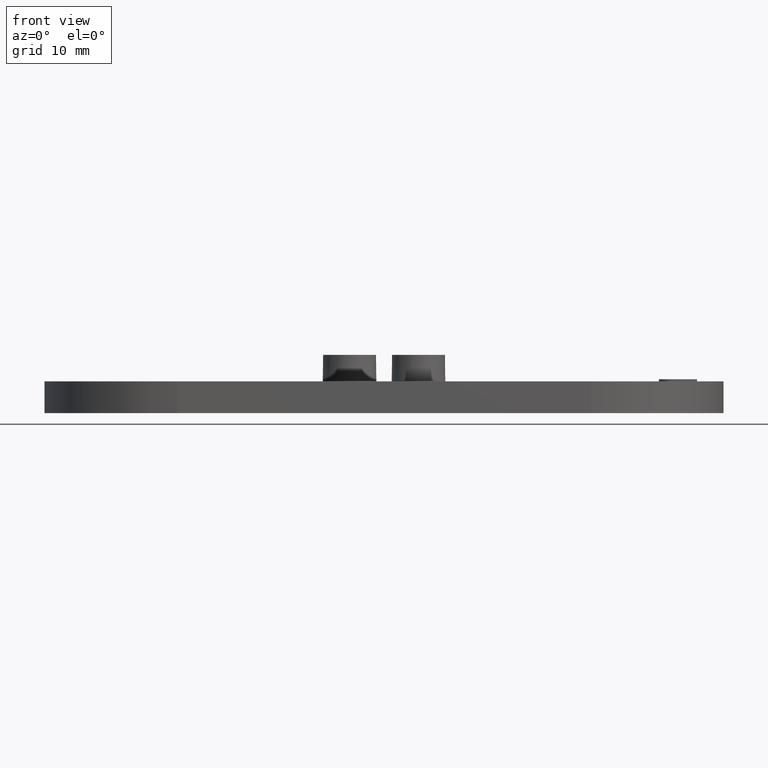
[diagram: clean part render]
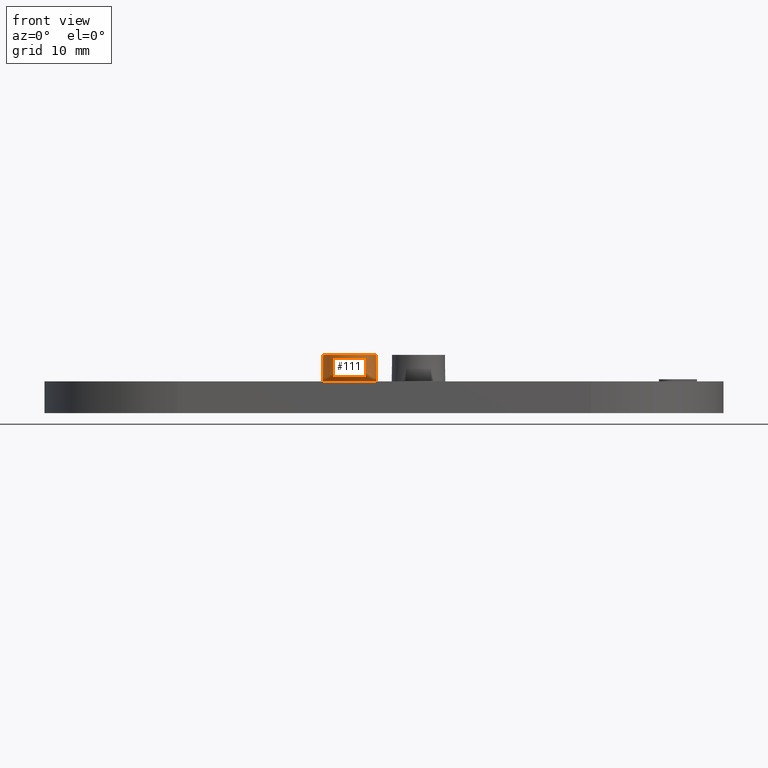
[diagram: same view with one face highlighted and labeled with its STEP entity id]
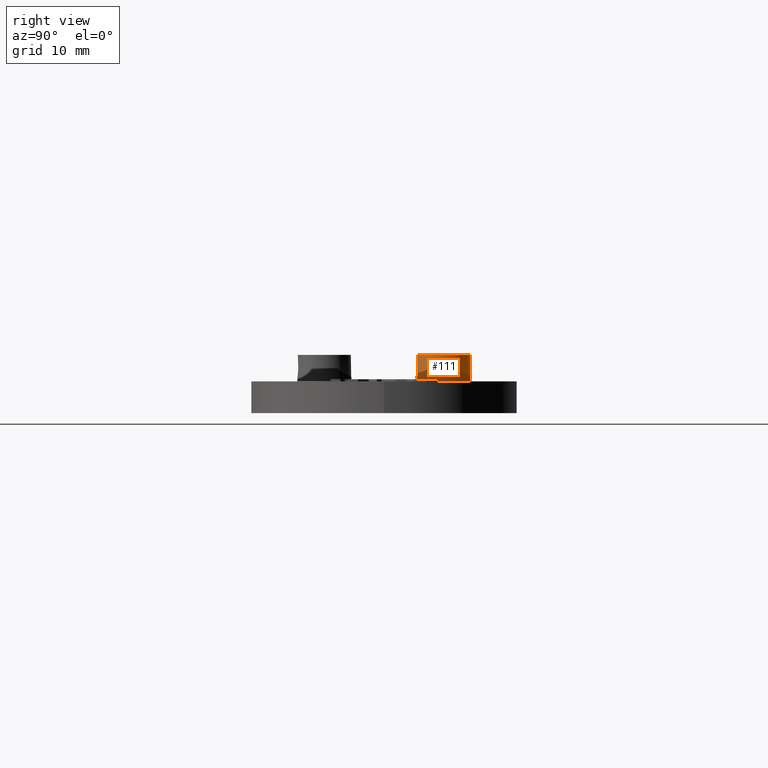
[diagram: same view with one face highlighted and labeled with its STEP entity id]
A machine part, front view. The second image highlights one B-rep face of the part: STEP entity #111.
A second angle (right view) of the same face is appended — the face is thin or edge-on in the first view.
In plain terms, the highlighted conical surface has half-angle 1 deg.
Its self-contained STEP definition (entity closure, byte-faithful):
#111 = ADVANCED_FACE( '', ( #232, #233 ), #234, .T. );
#232 = FACE_OUTER_BOUND( '', #389, .T. );
#233 = FACE_BOUND( '', #390, .T. );
#234 = CONICAL_SURFACE( '', #391, 2.50000000000000, 0.0174532925199433 );
#389 = EDGE_LOOP( '', ( #788 ) );
#390 = EDGE_LOOP( '', ( #789 ) );
#391 = AXIS2_PLACEMENT_3D( '', #790, #791, #792 );
#788 = ORIENTED_EDGE( '', *, *, #1096, .F. );
#789 = ORIENTED_EDGE( '', *, *, #1160, .T. );
#790 = CARTESIAN_POINT( '', ( -3.25000000000000, 5.62916512459885, 5.50000000000000 ) );
#791 = DIRECTION( '', ( 0.000000000000000, -6.12303176911189E-017, -1.00000000000000 ) );
#792 = DIRECTION( '', ( 0.000000000000000, 1.00000000000000, -6.12303176911189E-017 ) );
#1096 = EDGE_CURVE( '', #1337, #1337, #1338, .T. );
#1160 = EDGE_CURVE( '', #1436, #1436, #1437, .T. );
#1337 = VERTEX_POINT( '', #1686 );
#1338 = CIRCLE( '', #1687, 2.54363766232054 );
#1436 = VERTEX_POINT( '', #1834 );
#1437 = CIRCLE( '', #1835, 2.50000000000000 );
#1686 = CARTESIAN_POINT( '', ( -3.25000000000000, 8.17280278691939, 3.00000000000000 ) );
#1687 = AXIS2_PLACEMENT_3D( '', #2046, #2047, #2048 );
#1834 = CARTESIAN_POINT( '', ( -0.750000000000001, 5.62916512459885, 5.50000000000000 ) );
#1835 = AXIS2_PLACEMENT_3D( '', #2140, #2141, #2142 );
#2046 = CARTESIAN_POINT( '', ( -3.25000000000000, 5.62916512459885, 3.00000000000000 ) );
#2047 = DIRECTION( '', ( 0.000000000000000, -6.12303176911189E-017, -1.00000000000000 ) );
#2048 = DIRECTION( '', ( 0.000000000000000, 1.00000000000000, -6.12303176911189E-017 ) );
#2140 = CARTESIAN_POINT( '', ( -3.25000000000000, 5.62916512459885, 5.50000000000000 ) );
#2141 = DIRECTION( '', ( 0.000000000000000, -6.12303176911189E-017, -1.00000000000000 ) );
#2142 = DIRECTION( '', ( 1.00000000000000, 0.000000000000000, 0.000000000000000 ) );